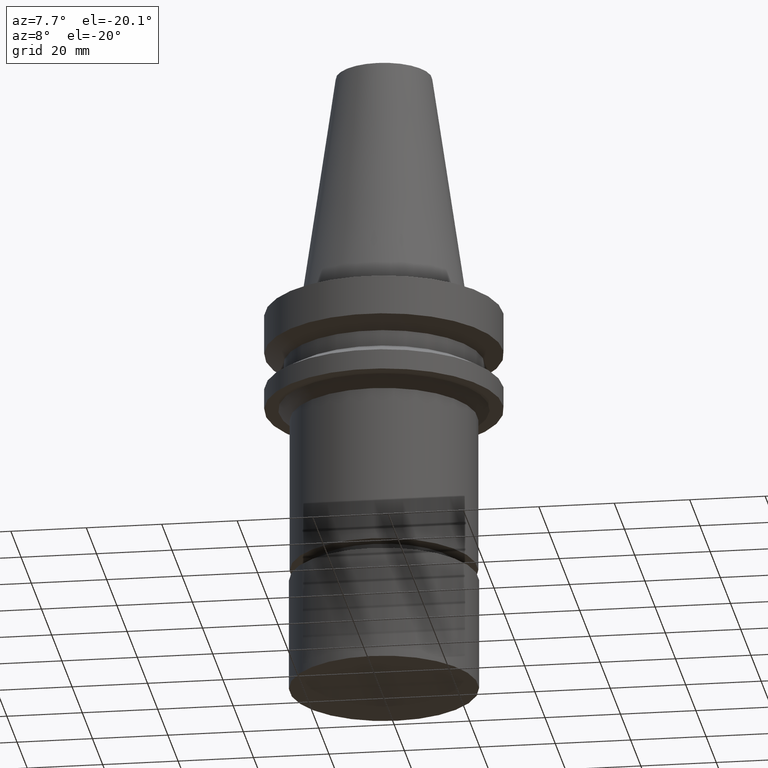
[diagram: clean part render]
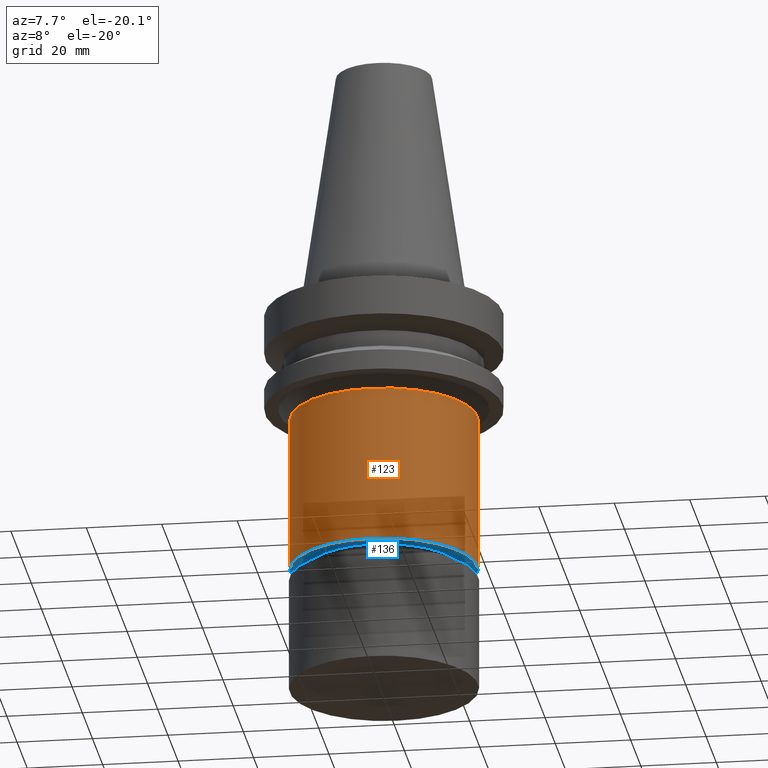
[diagram: same view with the hole feature highlighted: cylindrical wall and planar end face, labeled with their STEP entity ids]
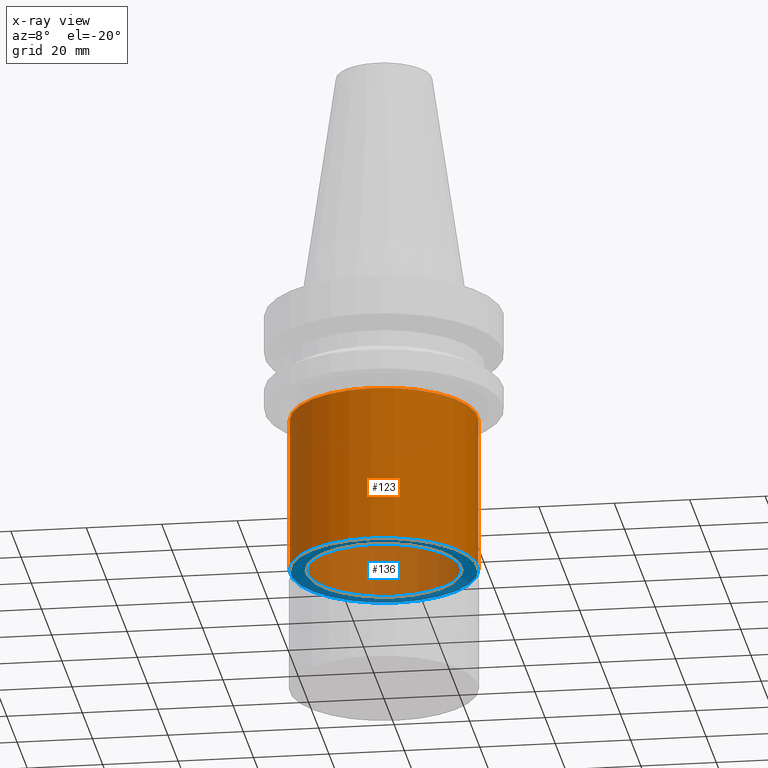
[diagram: x-ray of the same camera — body ghosted, the hole faces saturated]
A machine part, auxiliary view. The highlighted faces form one hole feature of diameter 49.6 mm: the cylindrical wall (entity #123, orange) and its adjacent planar end face (entity #136, blue) — they share a circular edge in the B-rep.
The next image is the same camera in x-ray (body ghosted, the hole faces saturated) — the bore reads through the body.
Wall:
#123=ADVANCED_FACE('Unnamed[1]',(#274,#275),#276,.T.);
#159=EDGE_CURVE('Unnamed[1]',#329,#329,#330,.T.);
#180=EDGE_CURVE('Unnamed[1]',#362,#362,#363,.T.);
#274=FACE_BOUND('',#466,.T.);
#275=FACE_BOUND('',#467,.T.);
#276=CYLINDRICAL_SURFACE('',#468,24.7999999999999);
#329=VERTEX_POINT('',#535);
#330=CIRCLE('',#536,24.7999999999997);
#362=VERTEX_POINT('',#577);
#363=CIRCLE('',#578,24.8000000000002);
#466=EDGE_LOOP('',(#658));
#467=EDGE_LOOP('',(#659));
#468=AXIS2_PLACEMENT_3D('',#660,#661,#662);
#535=CARTESIAN_POINT('',(1.83697045278272E-015,24.7999999999998,-30.0000041491422));
#536=AXIS2_PLACEMENT_3D('',#722,#723,#724);
#577=CARTESIAN_POINT('',(4.40873812527379E-015,24.8000000000003,-72.0001575694041));
#578=AXIS2_PLACEMENT_3D('',#758,#759,#760);
#658=ORIENTED_EDGE('',*,*,#180,.F.);
#659=ORIENTED_EDGE('',*,*,#159,.T.);
#660=CARTESIAN_POINT('',(3.12285428902825E-015,7.49455629251901E-014,-51.0000808592732));
#661=DIRECTION('',(6.12323399573677E-017,-1.89333969125614E-017,-1.0));
#662=DIRECTION('',(-3.66781653447671E-033,1.0,-1.89333969125614E-017));
#722=CARTESIAN_POINT('',(1.83697045278272E-015,7.53431657127365E-014,-30.0000041491422));
#723=DIRECTION('',(6.12323399573677E-017,-1.89333969125616E-017,-1.0));
#724=DIRECTION('',(-3.66781653447675E-033,1.0,-1.89333969125616E-017));
#758=CARTESIAN_POINT('',(4.40873812527379E-015,7.45479601376437E-014,-72.0001575694041));
#759=DIRECTION('',(6.12323399573677E-017,-1.89333969125612E-017,-1.0));
#760=DIRECTION('',(-3.66781653447667E-033,1.0,-1.89333969125612E-017));
End face:
#136=ADVANCED_FACE('Unnamed[1]',(#294,#295),#296,.T.);
#167=EDGE_CURVE('Unnamed[1]',#342,#342,#343,.T.);
#180=EDGE_CURVE('Unnamed[1]',#362,#362,#363,.T.);
#294=FACE_BOUND('',#491,.T.);
#295=FACE_OUTER_BOUND('',#492,.T.);
#296=PLANE('',#493);
#342=VERTEX_POINT('',#551);
#343=CIRCLE('',#552,20.499999999991);
#362=VERTEX_POINT('',#577);
#363=CIRCLE('',#578,24.8000000000002);
#491=EDGE_LOOP('',(#681));
#492=EDGE_LOOP('',(#682));
#493=AXIS2_PLACEMENT_3D('',#683,#684,#685);
#551=CARTESIAN_POINT('',(4.40873812527381E-015,20.4999999999911,-72.0001575694044));
#552=AXIS2_PLACEMENT_3D('',#737,#738,#739);
#577=CARTESIAN_POINT('',(4.40873812527379E-015,24.8000000000003,-72.0001575694041));
#578=AXIS2_PLACEMENT_3D('',#758,#759,#760);
#681=ORIENTED_EDGE('',*,*,#167,.F.);
#682=ORIENTED_EDGE('',*,*,#180,.T.);
#683=CARTESIAN_POINT('',(4.4087381252738E-015,22.6499999999957,-72.0001575694043));
#684=DIRECTION('',(6.12323399573677E-017,7.94388630901745E-014,-1.0));
#685=DIRECTION('',(-4.86905462329512E-030,1.0,7.94388630901745E-014));
#737=CARTESIAN_POINT('',(4.40873812527381E-015,7.45479601376437E-014,-72.0001575694044));
#738=DIRECTION('',(6.12323399573677E-017,-1.89333969125023E-017,-1.0));
#739=DIRECTION('',(-3.66781653447479E-033,1.0,-1.89333969125023E-017));
#758=CARTESIAN_POINT('',(4.40873812527379E-015,7.45479601376437E-014,-72.0001575694041));
#759=DIRECTION('',(6.12323399573677E-017,-1.89333969125612E-017,-1.0));
#760=DIRECTION('',(-3.66781653447667E-033,1.0,-1.89333969125612E-017));